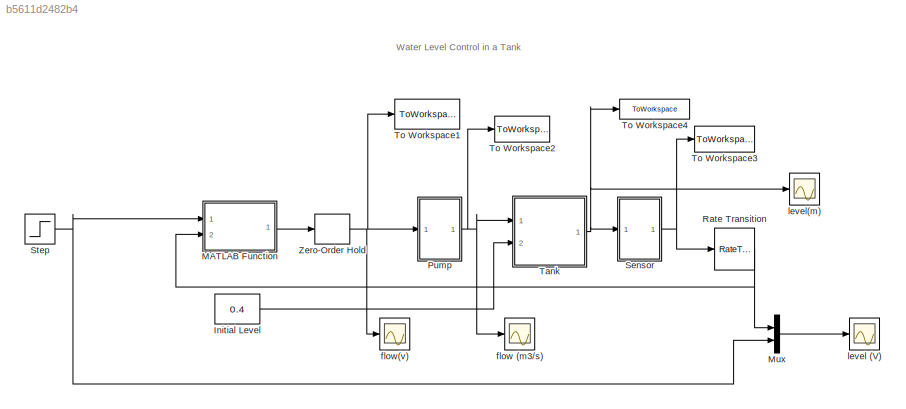
MODEL slx_b5611d2482b4
KIND model
CONFIG AbsTol = auto
CONFIG EnableMultiTasking = off
CONFIG FixedStep = 0.1
CONFIG MaxStep = auto
CONFIG MinStep = auto
CONFIG RelTol = 1e-3
CONFIG SampleTimeConstraint = Unconstrained
CONFIG SolverName = FixedStepAuto
CONFIG StartTime = 0.0
CONFIG StopTime = 1000
BLOCK [Constant] Initial Level
  Value = 0.4
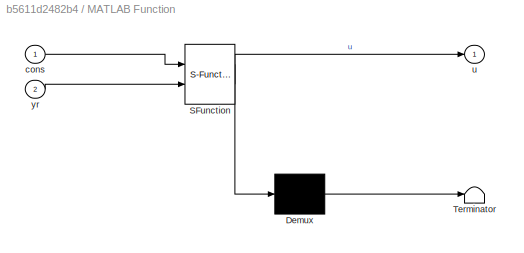
BLOCK [SubSystem] MATLAB Function
  ErrorFcn = Stateflow.Translate.translate
  PermitHierarchicalResolution = ExplicitOnly
  Ports = [2, 1]
  RequestExecContextInheritance = off
  SFBlockType = MATLAB Function
  TreatAsAtomicUnit = on
BLOCK [Demux] MATLAB Function/ Demux 
  Outputs = 1
  Ports = [1, 1]
BLOCK [S-Function] MATLAB Function/ SFunction 
  EnableBusSupport = on
  FunctionName = sf_sfun
  PortCounts = [2 2]
  Ports = [2, 2]
  SFcnIsStateOwnerBlock = off
  SFunctionDeploymentMode = off
  Tag = Stateflow S-Function 2
BLOCK [Terminator] MATLAB Function/ Terminator 
BLOCK [Inport] MATLAB Function/cons
BLOCK [Outport] MATLAB Function/u
BLOCK [Inport] MATLAB Function/yr
  Port = 2
BLOCK [Mux] Mux
  DisplayOption = bar
  Inputs = 2
  Ports = [2, 1]
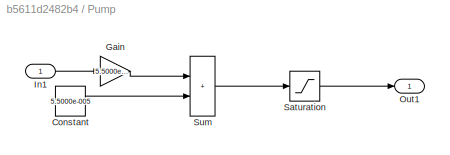
BLOCK [SubSystem] Pump
  Ports = [1, 1]
  RequestExecContextInheritance = off
BLOCK [Constant] Pump/Constant
  Value = 5.5000e-005
BLOCK [Gain] Pump/Gain
  Gain = 5.5000e-006
BLOCK [Inport] Pump/In1
BLOCK [Outport] Pump/Out1
BLOCK [Saturate] Pump/Saturation
  LowerLimit = 0
  UpperLimit = 1.1e-4
BLOCK [Sum] Pump/Sum
  IconShape = rectangular
  Ports = [2, 1]
BLOCK [RateTransition] Rate Transition
  NameLocation = top
  OutPortSampleTime = 1
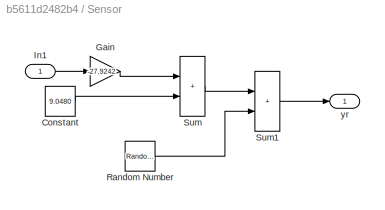
BLOCK [SubSystem] Sensor
  Ports = [1, 1]
  RequestExecContextInheritance = off
BLOCK [Constant] Sensor/Constant
  Value = 9.0480
BLOCK [Gain] Sensor/Gain
  Gain = -27.9242
BLOCK [Inport] Sensor/In1
BLOCK [RandomNumber] Sensor/Random Number
  SampleTime = 0.1
  Variance = 0.00005
BLOCK [Sum] Sensor/Sum
  IconShape = rectangular
  Ports = [2, 1]
BLOCK [Sum] Sensor/Sum1
  IconShape = rectangular
  Ports = [2, 1]
BLOCK [Outport] Sensor/yr
BLOCK [Step] Step
  After = -27.9242*0.45+9.0480
  Before = -27.9242*0.4+9.0480
  SampleTime = 0
  Time = 500
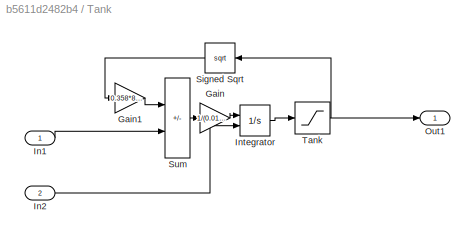
BLOCK [SubSystem] Tank
  Ports = [2, 1]
  RequestExecContextInheritance = off
BLOCK [Gain] Tank/Gain
  Gain = 1/(0.0154)
  OutDataTypeStr = Inherit: Same as input
  ParamDataTypeStr = Inherit: Same as input
  SaturateOnIntegerOverflow = on
BLOCK [Gain] Tank/Gain1
  Gain = 0.358*8e-5*sqrt(2*9.81)
  OutDataTypeStr = Inherit: Same as input
  ParamDataTypeStr = Inherit: Same as input
  SaturateOnIntegerOverflow = on
BLOCK [Inport] Tank/In1
BLOCK [Inport] Tank/In2
  Port = 2
BLOCK [Integrator] Tank/Integrator
  InitialCondition = 0.4
  InitialConditionSource = external
  Ports = [2, 1]
BLOCK [Outport] Tank/Out1
BLOCK [Sqrt] Tank/Signed Sqrt
  NameLocation = top
BLOCK [Sum] Tank/Sum
  IconShape = rectangular
  InputSameDT = on
  Inputs = -+
  OutDataTypeStr = Inherit: Same as first input
  Ports = [2, 1]
  SaturateOnIntegerOverflow = on
BLOCK [Saturate] Tank/Tank
  LowerLimit = 0
  NameLocation = top
  UpperLimit = 0.6
BLOCK [ToWorkspace] To Workspace1
  FixptAsFi = on
  MaxDataPoints = inf
  Ports = [1]
  SampleTime = -1
  SaveFormat = Timeseries
  VariableName = in_v
BLOCK [ToWorkspace] To Workspace2
  FixptAsFi = on
  MaxDataPoints = inf
  Ports = [1]
  SampleTime = -1
  SaveFormat = Timeseries
  VariableName = in
BLOCK [ToWorkspace] To Workspace3
  FixptAsFi = on
  MaxDataPoints = inf
  Ports = [1]
  SampleTime = -1
  SaveFormat = Timeseries
  VariableName = out_v
BLOCK [ToWorkspace] To Workspace4
  FixptAsFi = on
  MaxDataPoints = inf
  Ports = [1]
  SampleTime = -1
  SaveFormat = Timeseries
  VariableName = out
BLOCK [ZeroOrderHold] Zero-Order Hold
  SampleTime = 10
BLOCK [Scope] flow (m3//s)
  Floating = off
  NumInputPorts = 1
  Ports = [1]
  ScopeSpecificationString = Simulink.scopes.TimeScopeBlockCfg('CurrentConfiguration', extmgr.ConfigurationSet(extmgr.Configuration('Core','General UI',true),extmgr.Configuration('Core','Source UI',true),extmgr.Configuration('Sources','WiredSimulink',true,'DataLoggingVariableName','ScopeData1'),extmgr.Configuration('Visuals','Time Domain',true,'SerializedDisplays',{struct('MinYLimReal','0.00005','MaxYLimReal','0.000106','YLab...<+1438ch>
BLOCK [Scope] flow(v)
  Floating = off
  NumInputPorts = 1
  Ports = [1]
  ScopeSpecificationString = Simulink.scopes.TimeScopeBlockCfg('CurrentConfiguration', extmgr.ConfigurationSet(extmgr.Configuration('Core','General UI',true),extmgr.Configuration('Core','Source UI',true),extmgr.Configuration('Sources','WiredSimulink',true,'DataLoggingVariableName','ScopeData3'),extmgr.Configuration('Visuals','Time Domain',true,'SerializedDisplays',{struct('MinYLimReal','5.38628','MaxYLimReal','6.4924','YLabel...<+1441ch>
BLOCK [Scope] level (V)
  Floating = off
  NumInputPorts = 1
  Ports = [1]
  ScopeSpecificationString = Simulink.scopes.TimeScopeBlockCfg('CurrentConfiguration', extmgr.ConfigurationSet(extmgr.Configuration('Core','General UI',true),extmgr.Configuration('Core','Source UI',true),extmgr.Configuration('Sources','WiredSimulink',true,'DataLoggingVariableName','ScopeData1'),extmgr.Configuration('Visuals','Time Domain',true,'SerializedDisplays',{struct('MinYLimReal','-4.96004','MaxYLimReal','-1.30521','YLa...<+1482ch>
BLOCK [Scope] level(m)
  Floating = off
  NumInputPorts = 1
  Ports = [1]
  ScopeSpecificationString = Simulink.scopes.TimeScopeBlockCfg('CurrentConfiguration', extmgr.ConfigurationSet(extmgr.Configuration('Core','General UI',true),extmgr.Configuration('Core','Source UI',true),extmgr.Configuration('Sources','WiredSimulink',true,'DataLoggingVariableName','ScopeData2'),extmgr.Configuration('Visuals','Time Domain',true,'SerializedDisplays',{struct('MinYLimReal','0.37616','MaxYLimReal','0.45882','YLabe...<+1434ch>
ANNOTATION (root): Water Level Control in a Tank
LINE Initial Level:1 -> Tank:2
LINE MATLAB Function:1 -> Zero-Order Hold:1
LINE Mux:1 -> level (V):1
LINE Pump/Constant:1 -> Pump/Sum:2
LINE Pump/Gain:1 -> Pump/Sum:1
LINE Pump/In1:1 -> Pump/Gain:1
LINE Pump/Saturation:1 -> Pump/Out1:1
LINE Pump/Sum:1 -> Pump/Saturation:1
NET Pump:1 -> Tank:1, To Workspace2:1, flow (m3//s):1
NET Rate Transition:1 -> MATLAB Function:2, Mux:1
LINE Sensor/Constant:1 -> Sensor/Sum:2
LINE Sensor/Gain:1 -> Sensor/Sum:1
LINE Sensor/In1:1 -> Sensor/Gain:1
LINE Sensor/Random Number:1 -> Sensor/Sum1:2
LINE Sensor/Sum1:1 -> Sensor/yr:1
LINE Sensor/Sum:1 -> Sensor/Sum1:1
NET Sensor:1 -> Rate Transition:1, To Workspace3:1
NET Step:1 -> MATLAB Function:1, Mux:2
LINE Tank/Gain1:1 -> Tank/Sum:1
LINE Tank/Gain:1 -> Tank/Integrator:1
LINE Tank/In1:1 -> Tank/Sum:2
LINE Tank/In2:1 -> Tank/Integrator:2
LINE Tank/Integrator:1 -> Tank/Tank:1
LINE Tank/Signed Sqrt:1 -> Tank/Gain1:1
LINE Tank/Sum:1 -> Tank/Gain:1
NET Tank/Tank:1 -> Tank/Out1:1, Tank/Signed Sqrt:1
NET Tank:1 -> Sensor:1, To Workspace4:1, level(m):1
NET Zero-Order Hold:1 -> Pump:1, To Workspace1:1, flow(v):1
note: NET lines group one-source signal fan-out (src -> all destinations, sorted); 1:1 wires keep LINE
CHART MATLAB Function states=1 transitions=1
  STATE_LABEL 'eML_blk_kernel()'
  STATE_LABEL 'SCRIPT:\nfunction u = fcn(cons,yr)\n\nu=13*(yr-cons) + integral(yr,0,inf);\n'
CHART  states=0 transitions=0
